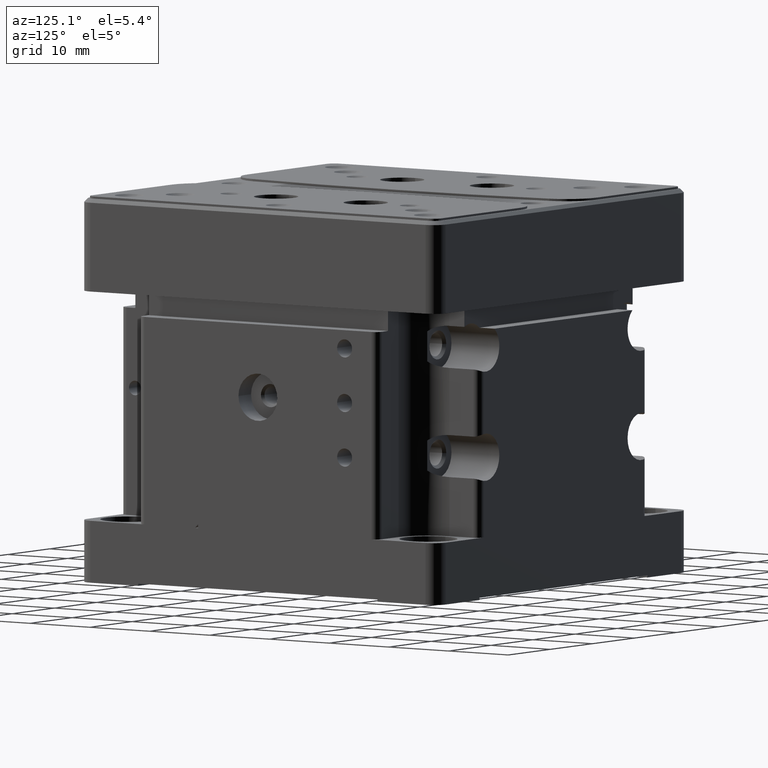
[diagram: clean part render]
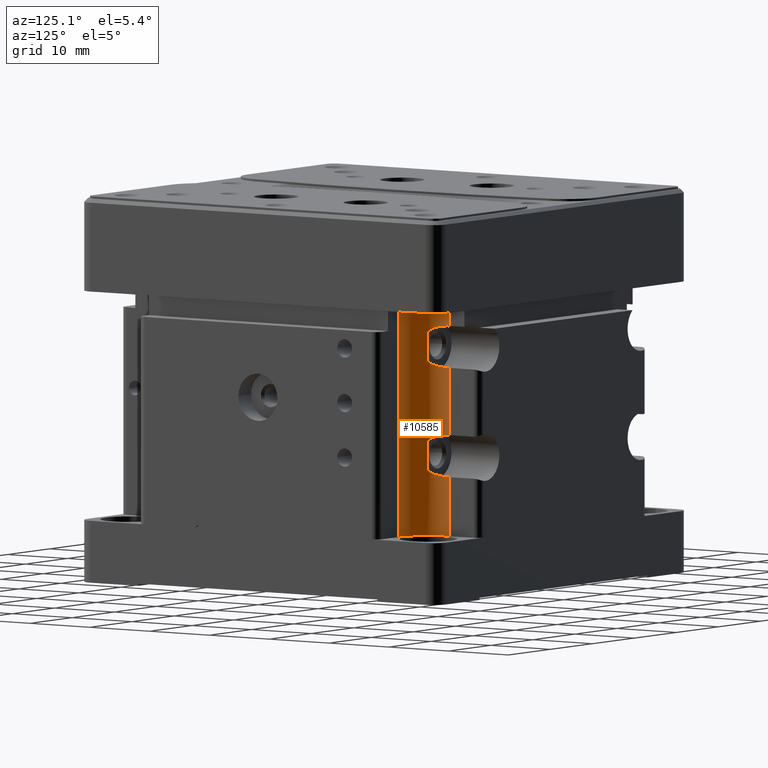
[diagram: same view with one face highlighted and labeled with its STEP entity id]
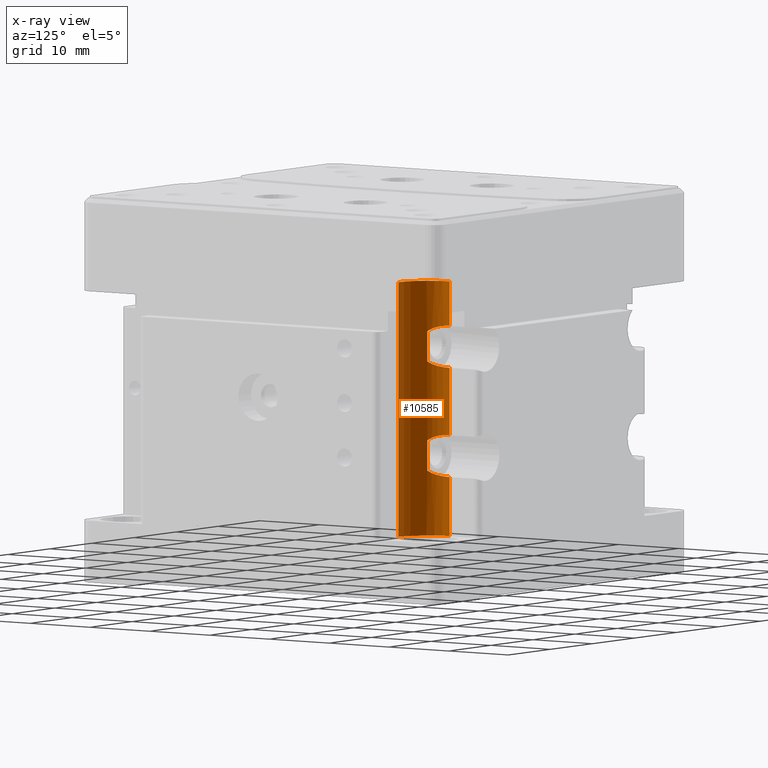
[diagram: x-ray of the same camera — body ghosted, the highlighted face saturated]
A machine part, auxiliary view. The second image highlights one B-rep face of the part: STEP entity #10585.
The next image is the same camera in x-ray: the body ghosted, the highlighted face saturated — about 0% of this face is hidden behind the body in this view.
In plain terms, the highlighted cylindrical surface (edge-blend (fillet) strip) has radius 5 mm, axis along (0, 0, 1).
Its self-contained STEP definition (entity closure, byte-faithful):
#179 = CARTESIAN_POINT ( 'NONE',  ( 21.00000000000000000, 22.00000000000000000, 28.07665596573000144 ) ) ;
#197 = VERTEX_POINT ( 'NONE', #845 ) ;
#463 = VERTEX_POINT ( 'NONE', #16315 ) ;
#490 = CARTESIAN_POINT ( 'NONE',  ( 20.20754146598225987, 23.56702414882596130, 13.76569574268796181 ) ) ;
#670 = CARTESIAN_POINT ( 'NONE',  ( 20.10931033903865384, 23.95953274803994759, 13.82353074028712037 ) ) ;
#765 = LINE ( 'NONE', #11492, #27430 ) ;
#845 = CARTESIAN_POINT ( 'NONE',  ( 25.00000000000000000, 20.00000000000000000, 0.000000000000000000 ) ) ;
#918 = CARTESIAN_POINT ( 'NONE',  ( 20.23725010668751878, 23.47768534324038114, 8.253163475468154431 ) ) ;
#1017 = CARTESIAN_POINT ( 'NONE',  ( 20.15123619494751139, 23.77739654409340275, 13.79933931520787382 ) ) ;
#1180 = CARTESIAN_POINT ( 'NONE',  ( 20.06139161680892258, 24.21855087415552532, 23.14967893286650735 ) ) ;
#1352 = CARTESIAN_POINT ( 'NONE',  ( 21.00000000000000000, 22.00000000000000000, 23.92334403426999856 ) ) ;
#2745 = CARTESIAN_POINT ( 'NONE',  ( 20.00000000000000000, 25.00000000000000000, 35.00000000000000000 ) ) ;
#2987 = CARTESIAN_POINT ( 'NONE',  ( 20.38671869275053794, 23.06956752291465662, 28.64677584855608927 ) ) ;
#3034 = CARTESIAN_POINT ( 'NONE',  ( 20.00000000000000000, 25.00000000000000000, 8.116859351331999761 ) ) ;
#3126 = CARTESIAN_POINT ( 'NONE',  ( 20.02586974407932630, 24.42139052785554654, 13.87005285911745567 ) ) ;
#3157 = CARTESIAN_POINT ( 'NONE',  ( 20.30095126840427611, 23.29142659158877393, 28.70553813755043393 ) ) ;
#3430 = CIRCLE ( 'NONE', #19769, 5.000000000000000888 ) ;
#3487 = CARTESIAN_POINT ( 'NONE',  ( 20.75502909460605139, 22.34633429118590087, 13.34579244520304897 ) ) ;
#3500 = CARTESIAN_POINT ( 'NONE',  ( 21.00000000000000000, 22.00000000000000000, 13.07665596572999966 ) ) ;
#3515 = CARTESIAN_POINT ( 'NONE',  ( 20.13364449905429865, 23.84923764948785774, 28.80959261804755300 ) ) ;
#3728 = CARTESIAN_POINT ( 'NONE',  ( 20.00628354035863055, 24.71257544777376935, 8.120044269024642603 ) ) ;
#3896 = CARTESIAN_POINT ( 'NONE',  ( 20.03553462115752382, 24.39792218109517563, 8.135570742776248920 ) ) ;
#3980 = CARTESIAN_POINT ( 'NONE',  ( 20.28598003995524124, 23.33315710057151549, 23.28457252118284870 ) ) ;
#4092 = B_SPLINE_CURVE_WITH_KNOTS ( 'NONE', 3,
 ( #19878, #24810, #3487, #8920, #6108, #33111, #25153, #25321, #11737, #30456, #6453, #17066, #490, #1017, #19348, #670, #6290, #14400, #30106, #11400, #3126, #17228, #22508 ),
 .UNSPECIFIED., .F., .F.,
 ( 4, 2, 2, 1, 1, 2, 2, 2, 2, 1, 2, 2, 4 ),
 ( 0.000000000000000000, 0.2499999999999861777, 0.3749999999999795719, 0.4374999999999743538, 0.4687499999999710232, 0.4843749999999711897, 0.4999999999999713007, 0.6249999999999823475, 0.6874999999999864553, 0.7187499999999897859, 0.7343749999999911182, 0.7499999999999924505, 1.000000000000000000 ),
 .UNSPECIFIED. ) ;
#4239 = CARTESIAN_POINT ( 'NONE',  ( 20.02434529662801665, 24.50219028641339136, 8.129599022102549810 ) ) ;
#4666 = CARTESIAN_POINT ( 'NONE',  ( 20.00000000000000000, 25.00000000000000000, 35.00000000000000000 ) ) ;
#4760 = CARTESIAN_POINT ( 'NONE',  ( 20.28097418453269540, 23.34740051107867842, 8.281292327401454045 ) ) ;
#5460 = LINE ( 'NONE', #29133, #19573 ) ;
#6108 = CARTESIAN_POINT ( 'NONE',  ( 20.51394177483522085, 22.78778756203376687, 13.55182027509794551 ) ) ;
#6137 = CARTESIAN_POINT ( 'NONE',  ( 20.08682896025967324, 24.07203229584743553, 28.83620725952641450 ) ) ;
#6290 = CARTESIAN_POINT ( 'NONE',  ( 20.09765677255375493, 24.01531331601249875, 13.83013934340740292 ) ) ;
#6453 = CARTESIAN_POINT ( 'NONE',  ( 20.30095126840269160, 23.29142659159320061, 13.70553813755087447 ) ) ;
#6611 = CARTESIAN_POINT ( 'NONE',  ( 20.13004603711437923, 23.85774835027442720, 23.18804367370330866 ) ) ;
#6875 = CARTESIAN_POINT ( 'NONE',  ( 20.06831593072955755, 24.17624903181816620, 8.153498345882072229 ) ) ;
#6921 = EDGE_CURVE ( 'NONE', #9565, #27213, #32889, .T. ) ;
#6995 = CARTESIAN_POINT ( 'NONE',  ( 20.00000000000000000, 25.00000000000000000, 13.88314064867000042 ) ) ;
#7040 = CARTESIAN_POINT ( 'NONE',  ( 20.20594001808607132, 23.57806373857885873, 8.233560325499503563 ) ) ;
#7589 = DIRECTION ( 'NONE',  ( 0.000000000000000000, 0.000000000000000000, 1.000000000000000000 ) ) ;
#7926 = EDGE_CURVE ( 'NONE', #9444, #8236, #13392, .T. ) ;
#8127 = LINE ( 'NONE', #27002, #30818 ) ;
#8191 = ORIENTED_EDGE ( 'NONE', *, *, #31647, .F. ) ;
#8236 = VERTEX_POINT ( 'NONE', #6995 ) ;
#8610 = CARTESIAN_POINT ( 'NONE',  ( 20.24977696913454750, 23.43365588618585704, 28.73942180899088328 ) ) ;
#8842 = AXIS2_PLACEMENT_3D ( 'NONE', #14325, #12012, #22773 ) ;
#8920 = CARTESIAN_POINT ( 'NONE',  ( 20.57341874353794609, 22.67173706373548825, 13.50395420125372681 ) ) ;
#8996 = EDGE_CURVE ( 'NONE', #34909, #21469, #3430, .T. ) ;
#9170 = CARTESIAN_POINT ( 'NONE',  ( 20.05218784602176640, 24.27803694945725255, 8.144627852464688900 ) ) ;
#9428 = CARTESIAN_POINT ( 'NONE',  ( 20.25328286075228590, 23.42814160619763797, 23.26332710839123763 ) ) ;
#9444 = VERTEX_POINT ( 'NONE', #20128 ) ;
#9519 = CARTESIAN_POINT ( 'NONE',  ( 20.06139161680908956, 24.21855087415442753, 8.149678932867859160 ) ) ;
#9565 = VERTEX_POINT ( 'NONE', #26447 ) ;
#9701 = CARTESIAN_POINT ( 'NONE',  ( 20.06552162866987743, 24.19315638469929652, 8.151955651374704459 ) ) ;
#10227 = CARTESIAN_POINT ( 'NONE',  ( 20.28598003995569243, 23.33315710057027914, 8.284572521180518123 ) ) ;
#10397 = DIRECTION ( 'NONE',  ( 0.000000000000000000, 0.000000000000000000, -1.000000000000000000 ) ) ;
#10585 = ADVANCED_FACE ( 'NONE', ( #21726 ), #30368, .F. ) ;
#10691 = ORIENTED_EDGE ( 'NONE', *, *, #6921, .T. ) ;
#10795 = EDGE_CURVE ( 'NONE', #14099, #9565, #26116, .T. ) ;
#10818 = VECTOR ( 'NONE', #15186, 1000.000000000000000 ) ;
#11314 = DIRECTION ( 'NONE',  ( -1.000000000000000000, 0.000000000000000000, 0.000000000000000000 ) ) ;
#11400 = CARTESIAN_POINT ( 'NONE',  ( 20.07600849498336615, 24.13131852494561969, 13.84224130631828231 ) ) ;
#11427 = CARTESIAN_POINT ( 'NONE',  ( 20.15123619493374463, 23.77739654414800796, 28.79933931521319934 ) ) ;
#11492 = CARTESIAN_POINT ( 'NONE',  ( 25.00000000000000000, 20.00000000000000000, 35.00000000000000000 ) ) ;
#11639 = CARTESIAN_POINT ( 'NONE',  ( 20.06952903366344643, 24.16900571949345178, 8.154168883682663349 ) ) ;
#11737 = CARTESIAN_POINT ( 'NONE',  ( 20.32073256389602989, 23.23795740902436080, 13.69227246155820410 ) ) ;
#11911 = CARTESIAN_POINT ( 'NONE',  ( 20.26983206436565865, 23.37956764456933456, 23.27403382821252009 ) ) ;
#12012 = DIRECTION ( 'NONE',  ( 0.000000000000000000, 0.000000000000000000, 1.000000000000000000 ) ) ;
#12164 = CARTESIAN_POINT ( 'NONE',  ( 20.00000000000000000, 24.85530298511752534, 8.116859351332001538 ) ) ;
#13205 = CARTESIAN_POINT ( 'NONE',  ( 21.00000000000000000, 22.00000000000000000, 23.92334403426999856 ) ) ;
#13392 = LINE ( 'NONE', #26446, #24230 ) ;
#13741 = CARTESIAN_POINT ( 'NONE',  ( 20.34015998852493823, 23.18665666611479281, 28.67910134363676633 ) ) ;
#13896 = CARTESIAN_POINT ( 'NONE',  ( 21.00000000000000000, 22.00000000000000000, 8.923344034270000336 ) ) ;
#14034 = ORIENTED_EDGE ( 'NONE', *, *, #27023, .T. ) ;
#14089 = CARTESIAN_POINT ( 'NONE',  ( 20.30790453778759996, 23.27240687530860441, 28.70090150336080015 ) ) ;
#14099 = VERTEX_POINT ( 'NONE', #13205 ) ;
#14264 = CARTESIAN_POINT ( 'NONE',  ( 20.07980017602691447, 24.11005201395341047, 28.84013238426990355 ) ) ;
#14325 = CARTESIAN_POINT ( 'NONE',  ( 25.00000000000000000, 25.00000000000000000, 0.000000000000000000 ) ) ;
#14337 = CARTESIAN_POINT ( 'NONE',  ( 25.00000000000000000, 20.00000000000000000, 35.00000000000000000 ) ) ;
#14400 = CARTESIAN_POINT ( 'NONE',  ( 20.08682896026287779, 24.07203229583043580, 13.83620725952478203 ) ) ;
#14479 = CARTESIAN_POINT ( 'NONE',  ( 20.18607337770011867, 23.64670473174029297, 8.221457046680040293 ) ) ;
#14563 = CARTESIAN_POINT ( 'NONE',  ( 20.03553462115707973, 24.39792218109867150, 23.13557074277462178 ) ) ;
#14648 = CARTESIAN_POINT ( 'NONE',  ( 20.25328286074603668, 23.42814160621632880, 8.263327108387350961 ) ) ;
#14744 = CARTESIAN_POINT ( 'NONE',  ( 20.06952903366318353, 24.16900571949503984, 23.15416888368126536 ) ) ;
#14909 = CARTESIAN_POINT ( 'NONE',  ( 20.75912777278424670, 22.32116296962100321, 23.63336794868900270 ) ) ;
#15090 = CARTESIAN_POINT ( 'NONE',  ( 20.02434529662761875, 24.50219028641741303, 23.12959902210080898 ) ) ;
#15186 = DIRECTION ( 'NONE',  ( 0.000000000000000000, 0.000000000000000000, 1.000000000000000000 ) ) ;
#15440 = VERTEX_POINT ( 'NONE', #3034 ) ;
#15523 = CARTESIAN_POINT ( 'NONE',  ( 20.49379824842464970, 22.75234182060406596, 8.421830555753036407 ) ) ;
#15799 = LINE ( 'NONE', #2745, #33252 ) ;
#16315 = CARTESIAN_POINT ( 'NONE',  ( 20.00000000000000000, 25.00000000000000000, 0.000000000000000000 ) ) ;
#16392 = CARTESIAN_POINT ( 'NONE',  ( 20.75502909458885981, 22.34633429121342374, 28.34579244522646846 ) ) ;
#17066 = CARTESIAN_POINT ( 'NONE',  ( 20.24977696914725911, 23.43365588615055017, 13.73942180898733767 ) ) ;
#17173 = DIRECTION ( 'NONE',  ( 0.000000000000000000, 0.000000000000000000, 1.000000000000000000 ) ) ;
#17228 = CARTESIAN_POINT ( 'NONE',  ( 20.00000000000000000, 24.70653011530592735, 13.88314064867000219 ) ) ;
#17384 = CARTESIAN_POINT ( 'NONE',  ( 20.06552162866977085, 24.19315638469992535, 23.15195565137339173 ) ) ;
#17564 = CARTESIAN_POINT ( 'NONE',  ( 20.23725010669538449, 23.47768534321586742, 23.25316347547214946 ) ) ;
#17653 = CARTESIAN_POINT ( 'NONE',  ( 20.09745162327261170, 24.00528742384977932, 8.169630043019505905 ) ) ;
#17749 = ORIENTED_EDGE ( 'NONE', *, *, #24736, .T. ) ;
#18426 = ORIENTED_EDGE ( 'NONE', *, *, #29533, .T. ) ;
#19085 = CARTESIAN_POINT ( 'NONE',  ( 25.00000000000000000, 25.00000000000000000, 35.00000000000000000 ) ) ;
#19140 = EDGE_LOOP ( 'NONE', ( #20563, #10691, #8191, #23428, #30070, #29891, #28151, #29176, #18426, #14034, #21683, #17749 ) ) ;
#19348 = CARTESIAN_POINT ( 'NONE',  ( 20.13364449906603326, 23.84923764943760105, 13.80959261804267690 ) ) ;
#19552 = CARTESIAN_POINT ( 'NONE',  ( 20.09765677254819494, 24.01531331604070019, 28.83013934341011719 ) ) ;
#19573 = VECTOR ( 'NONE', #7589, 1000.000000000000000 ) ;
#19732 = CARTESIAN_POINT ( 'NONE',  ( 20.51394177482221082, 22.78778756206048683, 28.55182027511939680 ) ) ;
#19769 = AXIS2_PLACEMENT_3D ( 'NONE', #30575, #17173, #27759 ) ;
#19878 = CARTESIAN_POINT ( 'NONE',  ( 21.00000000000000000, 22.00000000000000000, 13.07665596572999966 ) ) ;
#20128 = CARTESIAN_POINT ( 'NONE',  ( 20.00000000000000000, 25.00000000000000000, 23.11685935132999958 ) ) ;
#20471 = CARTESIAN_POINT ( 'NONE',  ( 20.13004603710556140, 23.85774835031203622, 8.188043673700583724 ) ) ;
#20550 = CARTESIAN_POINT ( 'NONE',  ( 20.00000000000000000, 25.00000000000000000, 23.11685935132999958 ) ) ;
#20563 = ORIENTED_EDGE ( 'NONE', *, *, #10795, .T. ) ;
#20815 = CARTESIAN_POINT ( 'NONE',  ( 20.75912777275884125, 22.32116296965489255, 8.633367948655868318 ) ) ;
#20928 = DIRECTION ( 'NONE',  ( 0.000000000000000000, 0.000000000000000000, -1.000000000000000000 ) ) ;
#20993 = CARTESIAN_POINT ( 'NONE',  ( 21.00000000000000000, 22.00000000000000000, 8.923344034270000336 ) ) ;
#21469 = VERTEX_POINT ( 'NONE', #14337 ) ;
#21664 = CARTESIAN_POINT ( 'NONE',  ( 20.57341874352285771, 22.67173706376419062, 28.50395420127714985 ) ) ;
#21683 = ORIENTED_EDGE ( 'NONE', *, *, #7926, .F. ) ;
#21726 = FACE_OUTER_BOUND ( 'NONE', #19140, .T. ) ;
#21801 = EDGE_CURVE ( 'NONE', #15440, #463, #8127, .T. ) ;
#22436 = DIRECTION ( 'NONE',  ( 0.000000000000000000, 0.000000000000000000, -1.000000000000000000 ) ) ;
#22508 = CARTESIAN_POINT ( 'NONE',  ( 20.00000000000000000, 25.00000000000000000, 13.88314064867000042 ) ) ;
#22674 = CARTESIAN_POINT ( 'NONE',  ( 20.06831593072950426, 24.17624903181848595, 23.15349834588079148 ) ) ;
#22773 = DIRECTION ( 'NONE',  ( -1.000000000000000000, 0.000000000000000000, 0.000000000000000000 ) ) ;
#23013 = CARTESIAN_POINT ( 'NONE',  ( 20.18607337771058141, 23.64670473170313869, 23.22145704668390565 ) ) ;
#23197 = CARTESIAN_POINT ( 'NONE',  ( 20.09745162327694601, 24.00528742382440583, 23.16963004302064633 ) ) ;
#23238 = CARTESIAN_POINT ( 'NONE',  ( 20.02586974407932985, 24.42139052785555364, 28.87005285911745034 ) ) ;
#23241 = EDGE_CURVE ( 'NONE', #15440, #33471, #30784, .T. ) ;
#23295 = CARTESIAN_POINT ( 'NONE',  ( 21.00000000000000000, 22.00000000000000000, 23.92334403426999856 ) ) ;
#23428 = ORIENTED_EDGE ( 'NONE', *, *, #8996, .T. ) ;
#23552 = CARTESIAN_POINT ( 'NONE',  ( 20.00000000000000000, 25.00000000000000000, 28.88314064866999686 ) ) ;
#24230 = VECTOR ( 'NONE', #10397, 1000.000000000000000 ) ;
#24736 = EDGE_CURVE ( 'NONE', #9444, #14099, #34494, .T. ) ;
#24810 = CARTESIAN_POINT ( 'NONE',  ( 20.88015430463209299, 22.15979426049053558, 13.22093322847855035 ) ) ;
#24841 = CARTESIAN_POINT ( 'NONE',  ( 20.20754146596611633, 23.56702414887993413, 28.76569574269328555 ) ) ;
#25011 = CARTESIAN_POINT ( 'NONE',  ( 20.07600849498336615, 24.13131852494561613, 28.84224130631827165 ) ) ;
#25153 = CARTESIAN_POINT ( 'NONE',  ( 20.38671869275683335, 23.06956752289935508, 13.64677584854413617 ) ) ;
#25308 = CARTESIAN_POINT ( 'NONE',  ( 20.00628354035838896, 24.71257544777778037, 23.12004426902269572 ) ) ;
#25321 = CARTESIAN_POINT ( 'NONE',  ( 20.34015998852812857, 23.18665666610651854, 13.67910134363036079 ) ) ;
#25405 = CARTESIAN_POINT ( 'NONE',  ( 20.26983206436180396, 23.37956764458056469, 8.274033828208843033 ) ) ;
#25834 = CARTESIAN_POINT ( 'NONE',  ( 20.28097418453475953, 23.34740051107279157, 23.28129232740496590 ) ) ;
#26116 = LINE ( 'NONE', #23295, #10818 ) ;
#26446 = CARTESIAN_POINT ( 'NONE',  ( 20.00000000000000000, 25.00000000000000000, 23.11685935132999958 ) ) ;
#26447 = CARTESIAN_POINT ( 'NONE',  ( 21.00000000000000000, 22.00000000000000000, 28.07665596573000144 ) ) ;
#27002 = CARTESIAN_POINT ( 'NONE',  ( 20.00000000000000000, 25.00000000000000000, 8.116859351331999761 ) ) ;
#27023 = EDGE_CURVE ( 'NONE', #31286, #8236, #4092, .T. ) ;
#27145 = CARTESIAN_POINT ( 'NONE',  ( 20.42849521770632393, 22.97367460830425401, 28.61633761862083958 ) ) ;
#27167 = AXIS2_PLACEMENT_3D ( 'NONE', #19085, #32507, #11314 ) ;
#27213 = VERTEX_POINT ( 'NONE', #23552 ) ;
#27306 = CARTESIAN_POINT ( 'NONE',  ( 20.32073256389420024, 23.23795740902921736, 28.69227246156195932 ) ) ;
#27430 = VECTOR ( 'NONE', #22436, 1000.000000000000000 ) ;
#27759 = DIRECTION ( 'NONE',  ( -1.000000000000000000, 0.000000000000000000, 0.000000000000000000 ) ) ;
#27840 = CARTESIAN_POINT ( 'NONE',  ( 20.00000000000000000, 25.00000000000000000, 28.88314064866999686 ) ) ;
#28007 = DIRECTION ( 'NONE',  ( 0.000000000000000000, 0.000000000000000000, -1.000000000000000000 ) ) ;
#28151 = ORIENTED_EDGE ( 'NONE', *, *, #21801, .F. ) ;
#28186 = CARTESIAN_POINT ( 'NONE',  ( 20.00000000000000355, 24.70653011530593446, 28.88314064867000397 ) ) ;
#28243 = CARTESIAN_POINT ( 'NONE',  ( 20.00000000000000000, 25.00000000000000000, 8.116859351331999761 ) ) ;
#28327 = CARTESIAN_POINT ( 'NONE',  ( 20.05218784602146442, 24.27803694945928825, 23.14462785246323051 ) ) ;
#29133 = CARTESIAN_POINT ( 'NONE',  ( 21.00000000000000000, 22.00000000000000000, 8.923344034270000336 ) ) ;
#29176 = ORIENTED_EDGE ( 'NONE', *, *, #23241, .T. ) ;
#29533 = EDGE_CURVE ( 'NONE', #33471, #31286, #5460, .T. ) ;
#29891 = ORIENTED_EDGE ( 'NONE', *, *, #32775, .F. ) ;
#29973 = CARTESIAN_POINT ( 'NONE',  ( 20.88015430461913624, 22.15979426050782664, 28.22093322849416808 ) ) ;
#30070 = ORIENTED_EDGE ( 'NONE', *, *, #32792, .T. ) ;
#30106 = CARTESIAN_POINT ( 'NONE',  ( 20.07980017602852030, 24.11005201394445407, 13.84013238426905623 ) ) ;
#30368 = CYLINDRICAL_SURFACE ( 'NONE', #27167, 5.000000000000000888 ) ;
#30456 = CARTESIAN_POINT ( 'NONE',  ( 20.30790453778851301, 23.27240687530610685, 13.70090150335887458 ) ) ;
#30575 = CARTESIAN_POINT ( 'NONE',  ( 25.00000000000000000, 25.00000000000000000, 35.00000000000000000 ) ) ;
#30784 = B_SPLINE_CURVE_WITH_KNOTS ( 'NONE', 3,
 ( #28243, #12164, #3728, #4239, #3896, #9170, #9519, #9701, #6875, #11639, #17653, #20471, #14479, #7040, #918, #14648, #25405, #4760, #10227, #15523, #20815, #20993 ),
 .UNSPECIFIED., .F., .F.,
 ( 4, 2, 1, 1, 1, 2, 2, 2, 2, 1, 2, 2, 4 ),
 ( 0.000000000000000000, 0.1250000000000271172, 0.1875000000000423273, 0.2187500000000514588, 0.2343750000000544842, 0.2421875000000544564, 0.2500000000000544009, 0.3750000000000600631, 0.4375000000000644484, 0.4687500000000665024, 0.4843750000000657807, 0.5000000000000650591, 1.000000000000000000 ),
 .UNSPECIFIED. ) ;
#30818 = VECTOR ( 'NONE', #28007, 1000.000000000000000 ) ;
#31286 = VERTEX_POINT ( 'NONE', #3500 ) ;
#31647 = EDGE_CURVE ( 'NONE', #34909, #27213, #15799, .T. ) ;
#32507 = DIRECTION ( 'NONE',  ( 0.000000000000000000, 0.000000000000000000, 1.000000000000000000 ) ) ;
#32775 = EDGE_CURVE ( 'NONE', #463, #197, #33083, .T. ) ;
#32792 = EDGE_CURVE ( 'NONE', #21469, #197, #765, .T. ) ;
#32889 = B_SPLINE_CURVE_WITH_KNOTS ( 'NONE', 3,
 ( #179, #29973, #16392, #21664, #19732, #27145, #2987, #13741, #27306, #14089, #3157, #8610, #24841, #11427, #3515, #32966, #19552, #6137, #14264, #25011, #23238, #28186, #27840 ),
 .UNSPECIFIED., .F., .F.,
 ( 4, 2, 2, 1, 1, 2, 2, 2, 2, 1, 2, 2, 4 ),
 ( 0.000000000000000000, 0.2499999999999856226, 0.3749999999999791278, 0.4374999999999752975, 0.4687499999999716338, 0.4843749999999706346, 0.4999999999999696354, 0.6249999999999815703, 0.6874999999999888978, 0.7187499999999914513, 0.7343749999999926725, 0.7499999999999938938, 1.000000000000000000 ),
 .UNSPECIFIED. ) ;
#32966 = CARTESIAN_POINT ( 'NONE',  ( 20.10931033903087339, 23.95953274807667555, 28.82353074029067130 ) ) ;
#33083 = CIRCLE ( 'NONE', #8842, 5.000000000000000888 ) ;
#33111 = CARTESIAN_POINT ( 'NONE',  ( 20.42849521771504584, 22.97367460828447960, 13.61633761860524494 ) ) ;
#33252 = VECTOR ( 'NONE', #20928, 1000.000000000000000 ) ;
#33275 = CARTESIAN_POINT ( 'NONE',  ( 20.00000000000000355, 24.85530298512020408, 23.11685935133000669 ) ) ;
#33451 = CARTESIAN_POINT ( 'NONE',  ( 20.49379824843891029, 22.75234182056419030, 23.42183055578727036 ) ) ;
#33471 = VERTEX_POINT ( 'NONE', #13896 ) ;
#33977 = CARTESIAN_POINT ( 'NONE',  ( 20.20594001809623563, 23.57806373854495874, 23.23356032550354655 ) ) ;
#34494 = B_SPLINE_CURVE_WITH_KNOTS ( 'NONE', 3,
 ( #20550, #33275, #25308, #15090, #14563, #28327, #1180, #17384, #22674, #14744, #23197, #6611, #23013, #33977, #17564, #9428, #11911, #25834, #3980, #33451, #14909, #1352 ),
 .UNSPECIFIED., .F., .F.,
 ( 4, 2, 1, 1, 1, 2, 2, 2, 2, 1, 2, 2, 4 ),
 ( 0.000000000000000000, 0.1249999999999719114, 0.1874999999999563405, 0.2187499999999499845, 0.2343749999999451550, 0.2421874999999441280, 0.2499999999999431288, 0.3749999999999393263, 0.4374999999999377720, 0.4687499999999388267, 0.4843749999999398814, 0.4999999999999409361, 1.000000000000000000 ),
 .UNSPECIFIED. ) ;
#34909 = VERTEX_POINT ( 'NONE', #4666 ) ;